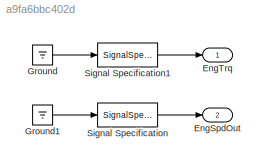
MODEL slx_a9fa6bbc402d
KIND model
CONFIG AbsTol = auto
CONFIG EnableMultiTasking = off
CONFIG FixedStep = auto
CONFIG MaxStep = auto
CONFIG MinStep = auto
CONFIG RelTol = 1e-3
CONFIG SampleTimeConstraint = Unconstrained
CONFIG Solver = VariableStepAuto
CONFIG SolverName = VariableStepAuto
CONFIG StartTime = 0.0
CONFIG StopTime = 10.0
BLOCK [Outport] EngSpdOut
  Port = 2
BLOCK [Outport] EngTrq
BLOCK [Ground] Ground
BLOCK [Ground] Ground1
BLOCK [SignalSpecification] Signal Specification
  Commented = through
  Unit = rev/min
BLOCK [SignalSpecification] Signal Specification1
  Unit = N*m
LINE Ground1:1 -> Signal Specification:1
LINE Ground:1 -> Signal Specification1:1
LINE Signal Specification1:1 -> EngTrq:1
LINE Signal Specification:1 -> EngSpdOut:1
